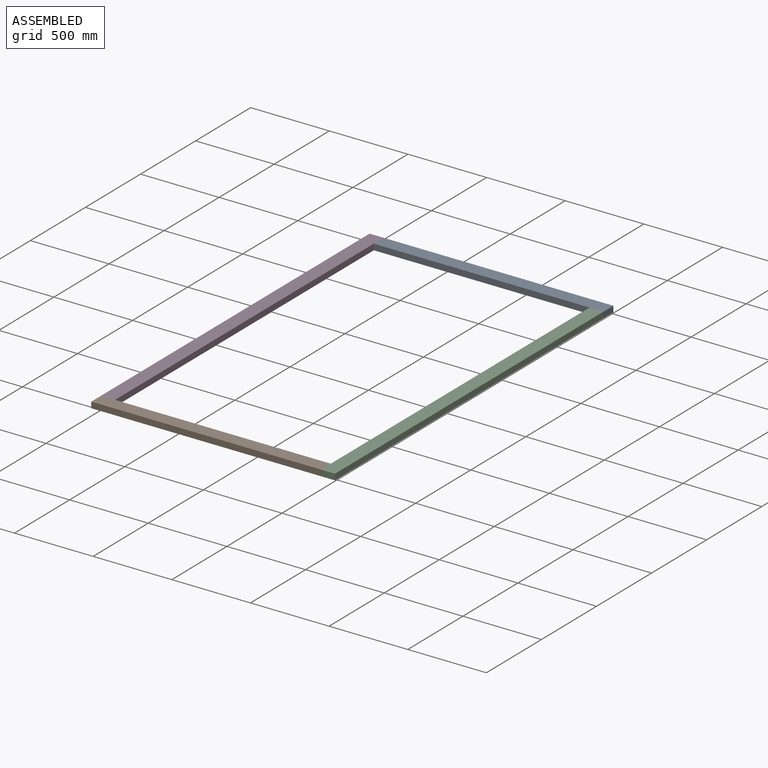
[diagram: assembled view]
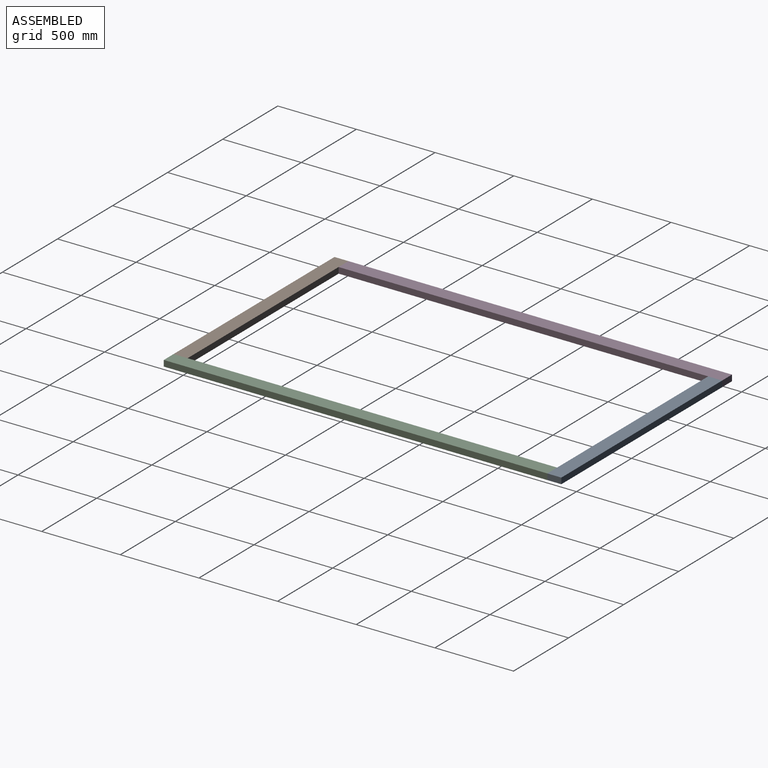
[diagram: assembled view, second angle]
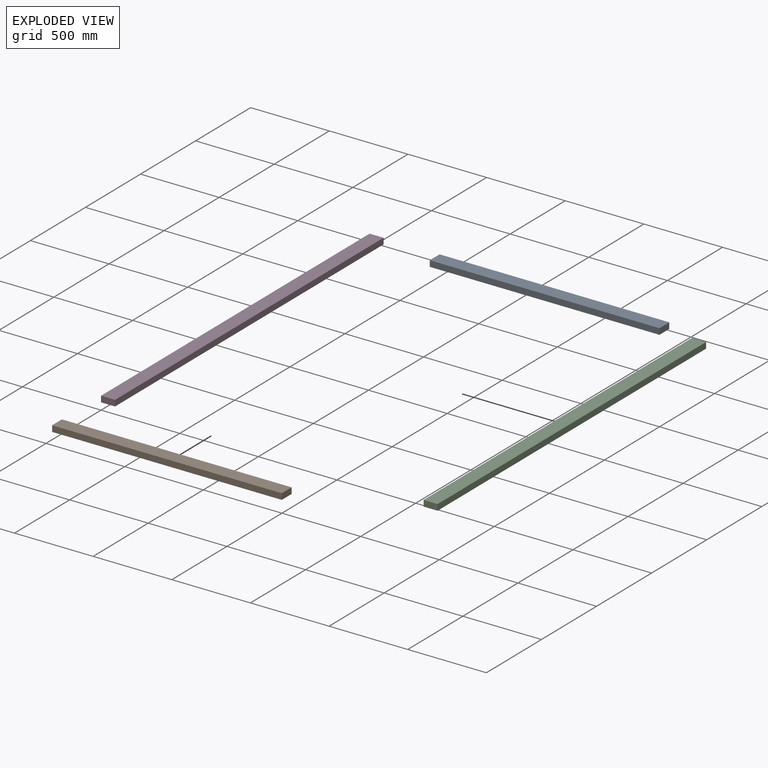
[diagram: exploded view]
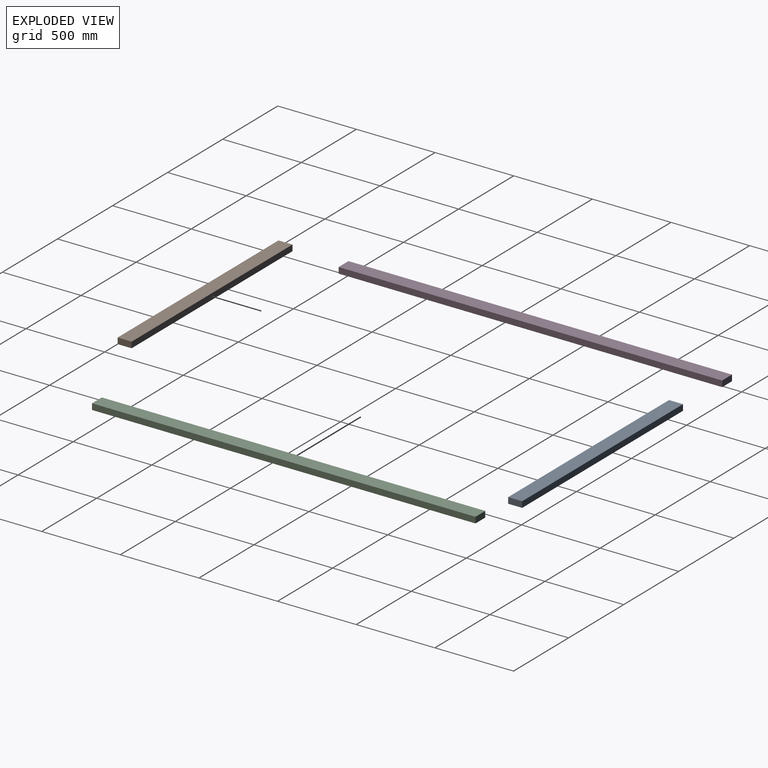
[diagram: exploded view, second angle]
ASSEMBLY  parts=4 mates=3
PART A: 6 faces, bbox 1460.5x88.9x38.1 mm
  f0: plane 1460.5x38.1mm, normal (0,1,0), area 55645mm2, adj f1,f3,f4,f5
  f1: plane 88.9x38.1mm, normal (-1,0,0), area 3387.1mm2, adj f0,f2,f4,f5
  f2: plane 1460.5x38.1mm, normal (0,-1,0), area 55645mm2, adj f1,f3,f4,f5
  f3: plane 88.9x38.1mm, normal (1,0,0), area 3387.1mm2, adj f0,f2,f4,f5
  f4: plane 1460.5x88.9mm, normal (0,0,1), area 129838.4mm2, adj f0,f1,f2,f3
  f5: plane 1460.5x88.9mm, normal (0,0,-1), area 129838.4mm2, adj f0,f1,f2,f3
PART B: same geometry as A
PART C: 6 faces, bbox 88.9x2438.4x38.1 mm
  f0: plane 2438.4x38.1mm, normal (-1,0,0), area 92903mm2, adj f1,f3,f4,f5
  f1: plane 88.9x38.1mm, normal (0,-1,0), area 3387.1mm2, adj f0,f2,f4,f5
  f2: plane 2438.4x38.1mm, normal (1,0,0), area 92903mm2, adj f1,f3,f4,f5
  f3: plane 88.9x38.1mm, normal (0,1,0), area 3387.1mm2, adj f0,f2,f4,f5
  f4: plane 2438.4x88.9mm, normal (0,0,1), area 216773.8mm2, adj f0,f1,f2,f3
  f5: plane 2438.4x88.9mm, normal (0,0,-1), area 216773.8mm2, adj f0,f1,f2,f3
PART D: same geometry as C
PLACE A rot(axis=(0,0,1),180deg) t=(1183.17,2381.4,0)mm
PLACE B t=(366.23,-31.9,0)mm
PLACE C t=(366.23,-31.9,0)mm
PLACE D t=(-1094.27,57,0)mm
MATE fastened A.f0 <-> C.f3  axis (0,-1,0) through (1549.4,2349.5,38.1)mm
MATE fastened D.f3 <-> A.f2  axis (0,1,0) through (88.9,2438.4,0)mm
MATE fastened B.f2 <-> C.f1  axis (0,-1,0) through (1460.5,-88.9,0)mm
